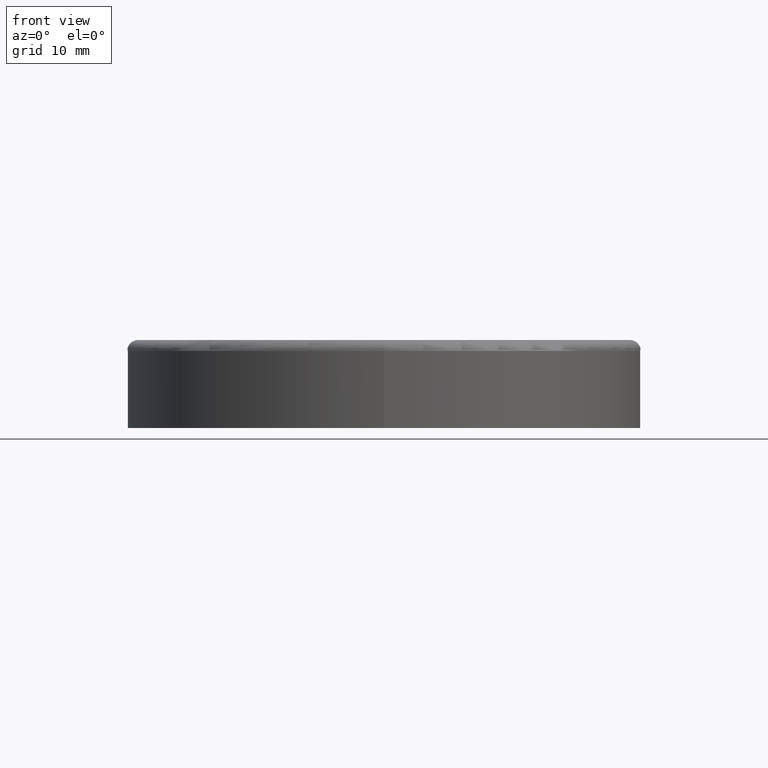
[diagram: clean part render]
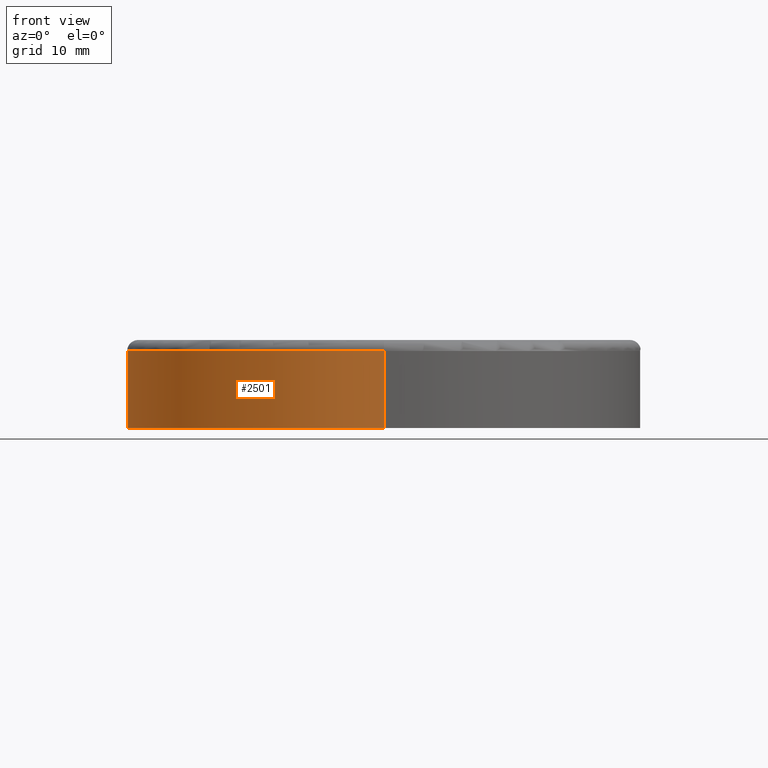
[diagram: same view with one face highlighted and labeled with its STEP entity id]
A machine part, front view. The second image highlights one B-rep face of the part: STEP entity #2501.
In plain terms, the highlighted cylindrical surface (partial cylindrical patch) has radius 35 mm, axis along (-0, 0, -1).
Its self-contained STEP definition (entity closure, byte-faithful):
#12 = VERTEX_POINT ( 'NONE', #9346 ) ;
#263 = FACE_OUTER_BOUND ( 'NONE', #6931, .T. ) ;
#576 = CARTESIAN_POINT ( 'NONE',  ( 4.286263797015737285E-15, -35.00000000000000000, 10.50000000000000000 ) ) ;
#1495 = ORIENTED_EDGE ( 'NONE', *, *, #8819, .T. ) ;
#1882 = CYLINDRICAL_SURFACE ( 'NONE', #4661, 35.00000000000000000 ) ;
#2433 = VECTOR ( 'NONE', #7477, 1000.000000000000000 ) ;
#2501 = ADVANCED_FACE ( 'NONE', ( #263 ), #1882, .T. ) ;
#2770 = DIRECTION ( 'NONE',  ( -0.000000000000000000, 1.224646799147353454E-16, -1.000000000000000000 ) ) ;
#2820 = VECTOR ( 'NONE', #8638, 1000.000000000000000 ) ;
#2961 = LINE ( 'NONE', #14450, #2433 ) ;
#3381 = CIRCLE ( 'NONE', #10506, 35.00000000000000000 ) ;
#3489 = ORIENTED_EDGE ( 'NONE', *, *, #4142, .F. ) ;
#4142 = EDGE_CURVE ( 'NONE', #12, #4572, #4149, .T. ) ;
#4149 = CIRCLE ( 'NONE', #11156, 35.00000000000000000 ) ;
#4210 = VERTEX_POINT ( 'NONE', #576 ) ;
#4285 = DIRECTION ( 'NONE',  ( 0.000000000000000000, 1.000000000000000000, 9.912705577010326782E-17 ) ) ;
#4297 = LINE ( 'NONE', #9811, #2820 ) ;
#4572 = VERTEX_POINT ( 'NONE', #11401 ) ;
#4661 = AXIS2_PLACEMENT_3D ( 'NONE', #9339, #9384, #13741 ) ;
#6209 = CARTESIAN_POINT ( 'NONE',  ( 0.000000000000000000, 35.00000000000000000, 10.50000000000000711 ) ) ;
#6618 = DIRECTION ( 'NONE',  ( -0.000000000000000000, 1.224646799147353454E-16, -1.000000000000000000 ) ) ;
#6931 = EDGE_LOOP ( 'NONE', ( #8141, #1495, #8943, #3489 ) ) ;
#7477 = DIRECTION ( 'NONE',  ( -0.000000000000000000, 1.224646799147353454E-16, -1.000000000000000000 ) ) ;
#7705 = CARTESIAN_POINT ( 'NONE',  ( 0.000000000000000000, -1.285879139104721619E-15, 10.50000000000000355 ) ) ;
#8141 = ORIENTED_EDGE ( 'NONE', *, *, #9548, .F. ) ;
#8638 = DIRECTION ( 'NONE',  ( -0.000000000000000000, 1.224646799147353454E-16, -1.000000000000000000 ) ) ;
#8819 = EDGE_CURVE ( 'NONE', #4210, #11782, #3381, .T. ) ;
#8943 = ORIENTED_EDGE ( 'NONE', *, *, #11784, .T. ) ;
#9339 = CARTESIAN_POINT ( 'NONE',  ( 0.000000000000000000, 0.000000000000000000, 0.000000000000000000 ) ) ;
#9346 = CARTESIAN_POINT ( 'NONE',  ( 4.286263797015736496E-15, -35.00000000000000000, 0.000000000000000000 ) ) ;
#9384 = DIRECTION ( 'NONE',  ( -0.000000000000000000, 1.224646799147353454E-16, -1.000000000000000000 ) ) ;
#9548 = EDGE_CURVE ( 'NONE', #4210, #12, #4297, .T. ) ;
#9811 = CARTESIAN_POINT ( 'NONE',  ( 4.286263797015736496E-15, -35.00000000000000000, -4.286263797015737285E-15 ) ) ;
#10506 = AXIS2_PLACEMENT_3D ( 'NONE', #7705, #6618, #4285 ) ;
#10865 = DIRECTION ( 'NONE',  ( 0.000000000000000000, 1.000000000000000000, 1.224646799147353454E-16 ) ) ;
#11156 = AXIS2_PLACEMENT_3D ( 'NONE', #13266, #2770, #10865 ) ;
#11401 = CARTESIAN_POINT ( 'NONE',  ( 0.000000000000000000, 35.00000000000000000, 8.572527594031474570E-15 ) ) ;
#11782 = VERTEX_POINT ( 'NONE', #6209 ) ;
#11784 = EDGE_CURVE ( 'NONE', #11782, #4572, #2961, .T. ) ;
#13266 = CARTESIAN_POINT ( 'NONE',  ( 0.000000000000000000, -5.249159239316504474E-31, 4.286263797015737285E-15 ) ) ;
#13741 = DIRECTION ( 'NONE',  ( 0.000000000000000000, 1.000000000000000000, 1.224646799147353454E-16 ) ) ;
#14450 = CARTESIAN_POINT ( 'NONE',  ( 0.000000000000000000, 35.00000000000000000, 4.286263797015737285E-15 ) ) ;